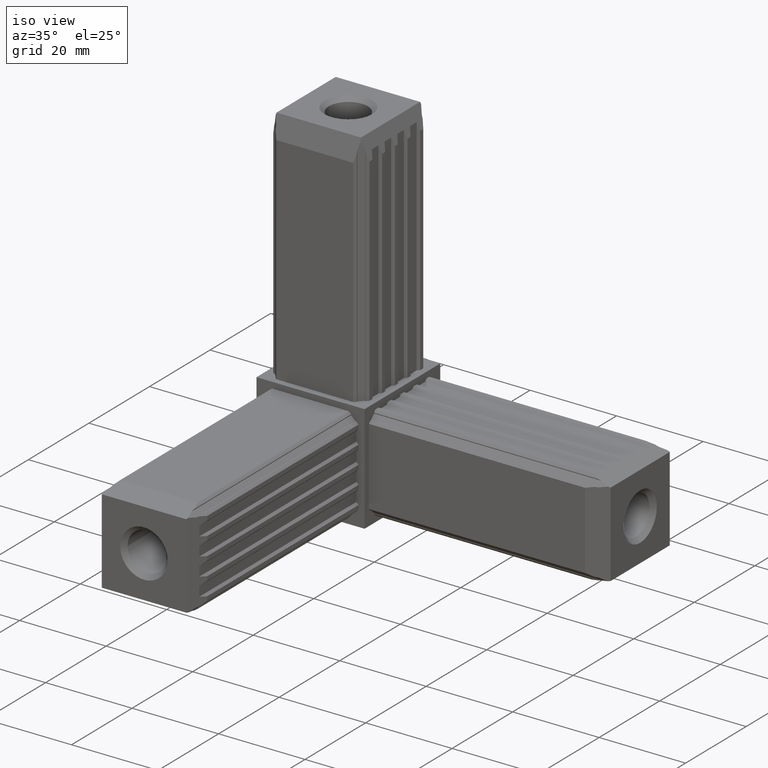
[diagram: clean part render]
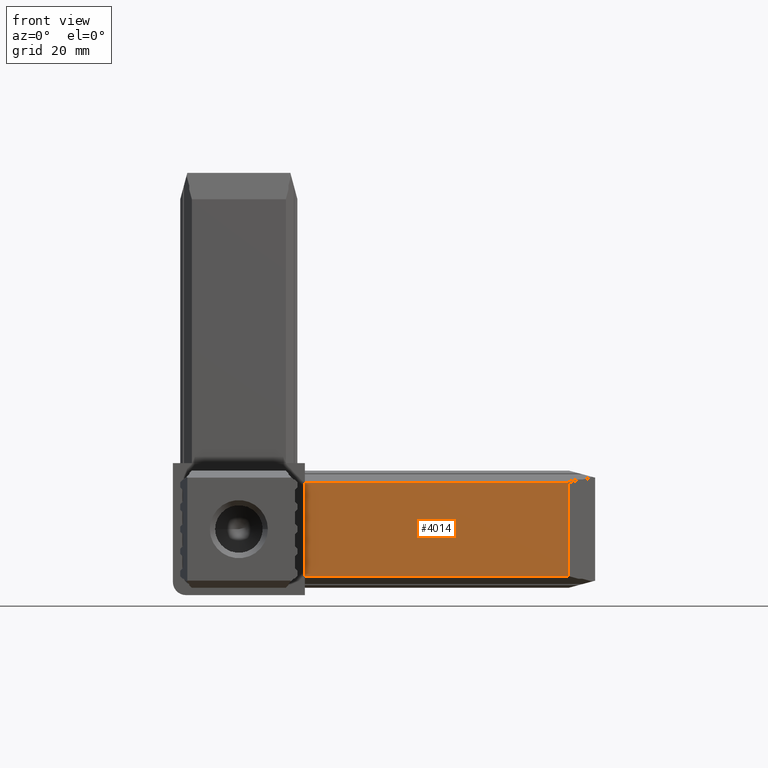
[diagram: tour spotlight — one face highlighted and labeled with its STEP entity id]
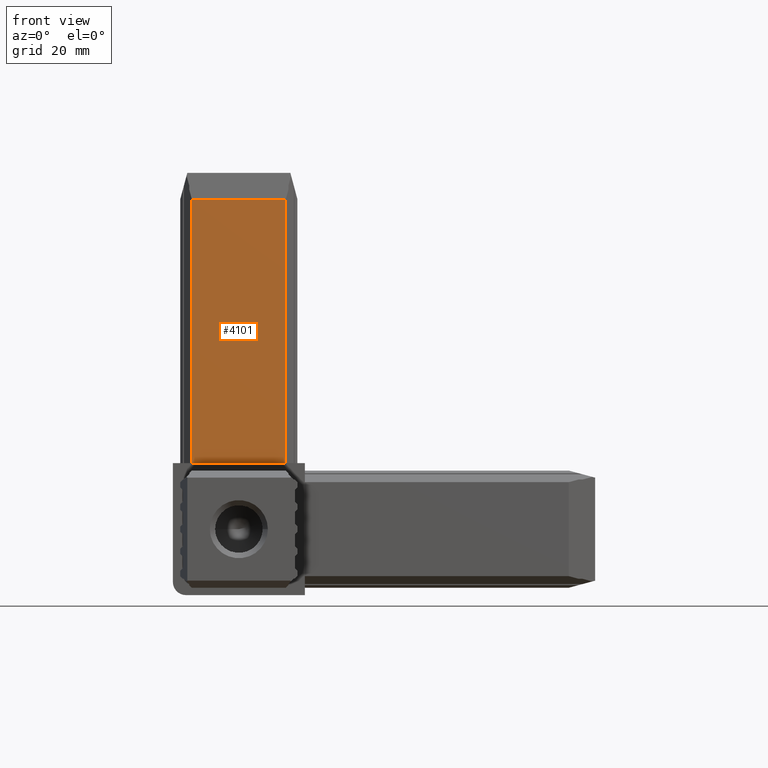
[diagram: tour spotlight — one face highlighted and labeled with its STEP entity id]
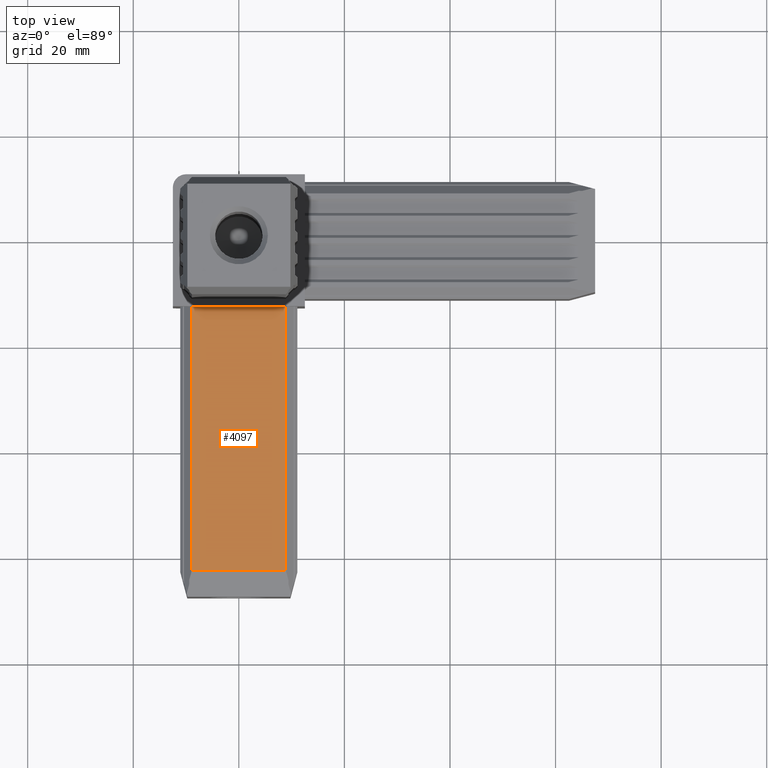
[diagram: tour spotlight — one face highlighted and labeled with its STEP entity id]
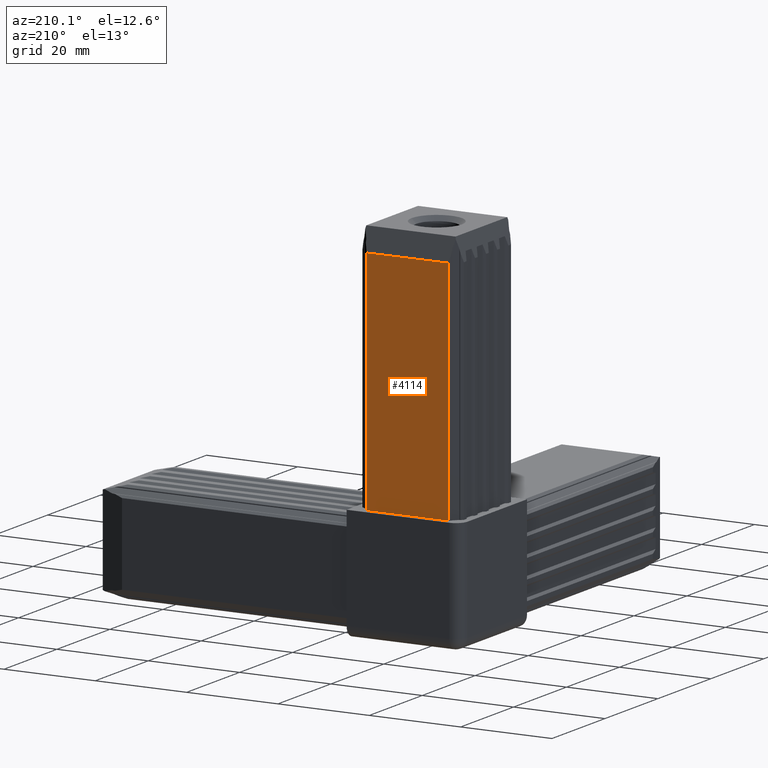
[diagram: tour spotlight — one face highlighted and labeled with its STEP entity id]
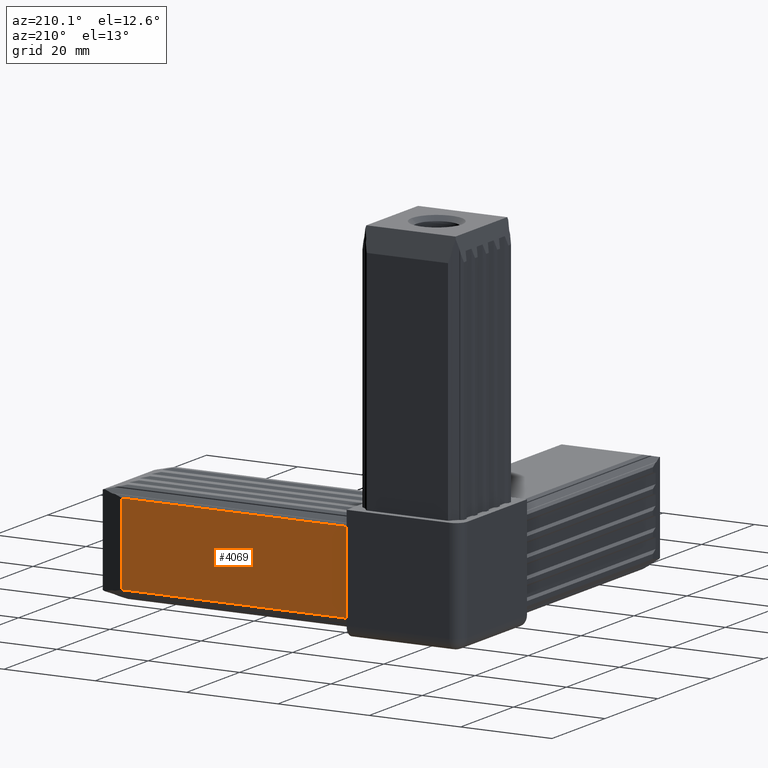
[diagram: tour spotlight — one face highlighted and labeled with its STEP entity id]
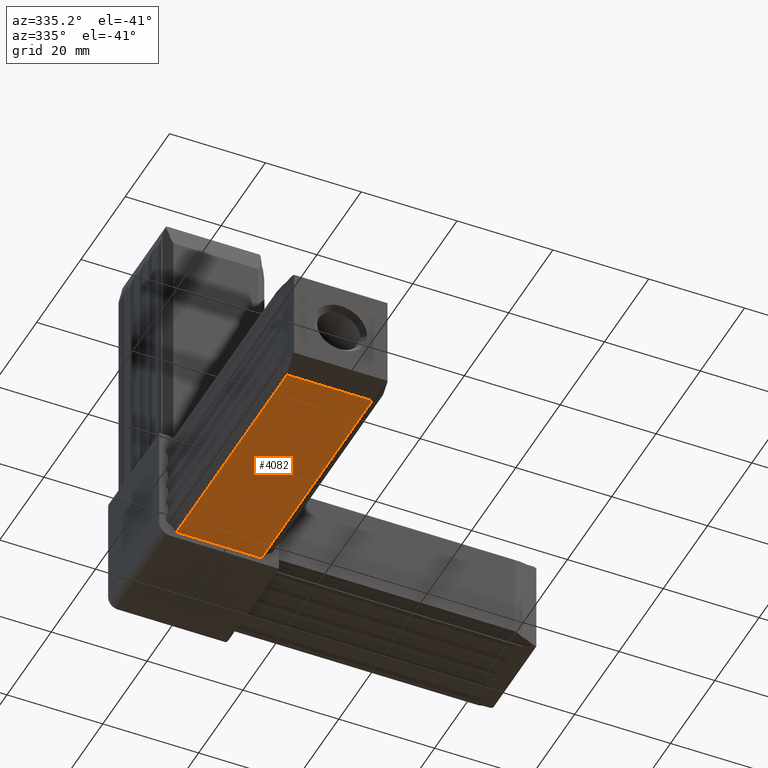
[diagram: tour spotlight — one face highlighted and labeled with its STEP entity id]
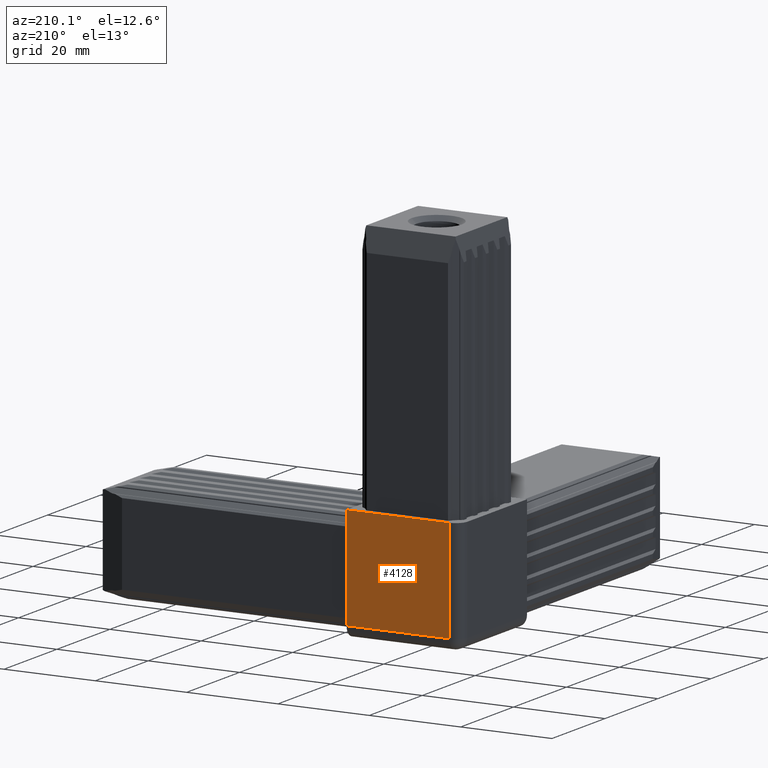
[diagram: tour spotlight — one face highlighted and labeled with its STEP entity id]
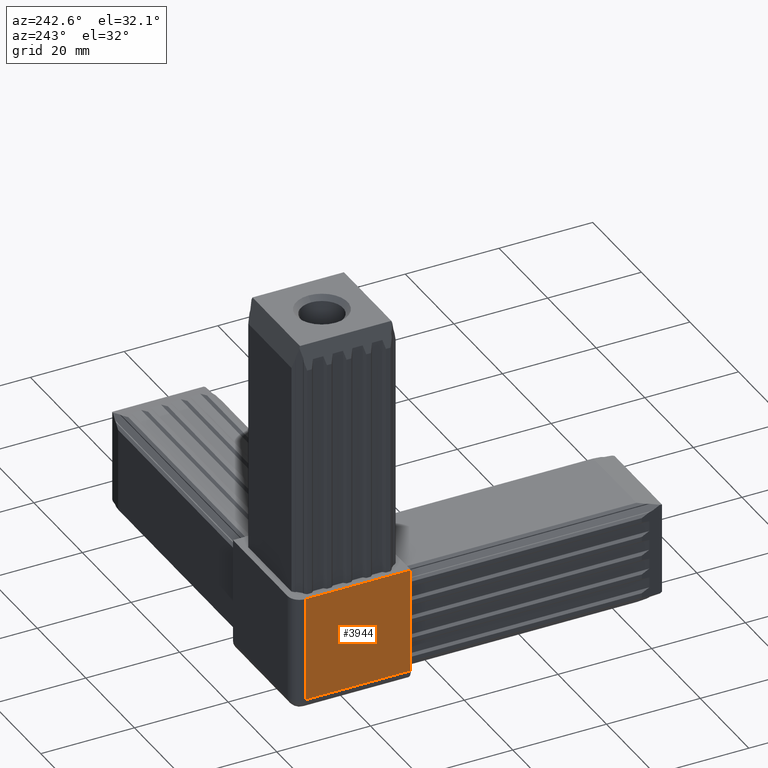
[diagram: tour spotlight — one face highlighted and labeled with its STEP entity id]
A machine part: a face-by-face anatomy tour. The part has 202 B-rep faces; the first image is the clean iso view, then the 8 largest visible faces are spotlighted one at a time (largest first), each with its STEP entity span.

Face 1 — front view, entity #4014. In plain terms, the highlighted planar face has unit normal (0, -1, 0).
Definition (entity closure, byte-faithful):
#95=PLANE('',#4257);
#303=FACE_OUTER_BOUND('',#509,.T.);
#509=EDGE_LOOP('',(#3331,#3332,#3333,#3334));
#989=LINE('',#6158,#1553);
#993=LINE('',#6166,#1557);
#994=LINE('',#6168,#1558);
#995=LINE('',#6169,#1559);
#1553=VECTOR('',#4951,10.);
#1557=VECTOR('',#4957,10.);
#1558=VECTOR('',#4958,10.);
#1559=VECTOR('',#4959,10.);
#2077=VERTEX_POINT('',#6155);
#2078=VERTEX_POINT('',#6157);
#2081=VERTEX_POINT('',#6165);
#2082=VERTEX_POINT('',#6167);
#2550=EDGE_CURVE('',#2077,#2078,#989,.T.);
#2554=EDGE_CURVE('',#2081,#2077,#993,.T.);
#2555=EDGE_CURVE('',#2082,#2081,#994,.T.);
#2556=EDGE_CURVE('',#2082,#2078,#995,.T.);
#3331=ORIENTED_EDGE('',*,*,#2550,.F.);
#3332=ORIENTED_EDGE('',*,*,#2554,.F.);
#3333=ORIENTED_EDGE('',*,*,#2555,.F.);
#3334=ORIENTED_EDGE('',*,*,#2556,.T.);
#4014=ADVANCED_FACE('',(#303),#95,.T.);
#4257=AXIS2_PLACEMENT_3D('',#6164,#4955,#4956);
#4951=DIRECTION('',(0.,-9.97953280561973E-16,-1.));
#4955=DIRECTION('center_axis',(0.,-1.,9.97953280561973E-16));
#4956=DIRECTION('ref_axis',(0.,-9.97953280561973E-16,-1.));
#4957=DIRECTION('',(1.,0.,0.));
#4958=DIRECTION('',(0.,9.97953280561973E-16,1.));
#4959=DIRECTION('',(1.,0.,0.));
#6155=CARTESIAN_POINT('',(62.5,-11.1000000000002,8.89999999999969));
#6157=CARTESIAN_POINT('',(62.5,-11.1000000000002,-8.89999999999969));
#6158=CARTESIAN_POINT('',(62.5,-11.1000000000002,4.44999999999976));
#6164=CARTESIAN_POINT('Origin',(12.5,-11.1000000000002,8.89999999999969));
#6165=CARTESIAN_POINT('',(12.5,-11.1000000000002,8.89999999999969));
#6166=CARTESIAN_POINT('',(12.5,-11.1000000000002,8.89999999999969));
#6167=CARTESIAN_POINT('',(12.5,-11.1000000000002,-8.89999999999969));
#6168=CARTESIAN_POINT('',(12.5,-11.1000000000002,4.44999999999985));
#6169=CARTESIAN_POINT('',(12.5,-11.1000000000002,-8.89999999999969));

Face 2 — front view, entity #4101. In plain terms, the highlighted planar face has unit normal (-0, -1, 0).
Definition (entity closure, byte-faithful):
#182=PLANE('',#4344);
#390=FACE_OUTER_BOUND('',#596,.T.);
#596=EDGE_LOOP('',(#3692,#3693,#3694,#3695));
#1028=LINE('',#6236,#1592);
#1034=LINE('',#6247,#1598);
#1138=LINE('',#6459,#1702);
#1140=LINE('',#6462,#1704);
#1592=VECTOR('',#5024,10.);
#1598=VECTOR('',#5032,10.);
#1702=VECTOR('',#5274,10.);
#1704=VECTOR('',#5278,10.);
#2099=VERTEX_POINT('',#6233);
#2100=VERTEX_POINT('',#6235);
#2104=VERTEX_POINT('',#6245);
#2143=VERTEX_POINT('',#6458);
#2589=EDGE_CURVE('',#2099,#2100,#1028,.T.);
#2595=EDGE_CURVE('',#2104,#2099,#1034,.T.);
#2699=EDGE_CURVE('',#2143,#2100,#1138,.T.);
#2701=EDGE_CURVE('',#2143,#2104,#1140,.T.);
#3692=ORIENTED_EDGE('',*,*,#2589,.F.);
#3693=ORIENTED_EDGE('',*,*,#2595,.F.);
#3694=ORIENTED_EDGE('',*,*,#2701,.F.);
#3695=ORIENTED_EDGE('',*,*,#2699,.T.);
#4101=ADVANCED_FACE('',(#390),#182,.T.);
#4344=AXIS2_PLACEMENT_3D('',#6461,#5276,#5277);
#5024=DIRECTION('',(1.,-1.99590656112393E-15,0.));
#5032=DIRECTION('',(0.,0.,1.));
#5274=DIRECTION('',(0.,0.,1.));
#5276=DIRECTION('center_axis',(-1.99590656112393E-15,-1.,0.));
#5277=DIRECTION('ref_axis',(1.,-1.99590656112393E-15,0.));
#5278=DIRECTION('',(-1.,1.99590656112393E-15,0.));
#6233=CARTESIAN_POINT('',(-8.89999999999976,-11.1,62.5));
#6235=CARTESIAN_POINT('',(8.89999999999976,-11.1,62.5));
#6236=CARTESIAN_POINT('',(-4.44999999999984,-11.1,62.5));
#6245=CARTESIAN_POINT('',(-8.89999999999976,-11.1,12.5));
#6247=CARTESIAN_POINT('',(-8.89999999999976,-11.1,12.5));
#6458=CARTESIAN_POINT('',(8.89999999999976,-11.1,12.5));
#6459=CARTESIAN_POINT('',(8.89999999999976,-11.1,12.5));
#6461=CARTESIAN_POINT('Origin',(-8.89999999999976,-11.1,12.5));
#6462=CARTESIAN_POINT('',(-4.44999999999989,-11.1,12.5));

Face 3 — top view, entity #4097. In plain terms, the highlighted planar face has unit normal (0, 0, 1).
Definition (entity closure, byte-faithful):
#178=PLANE('',#4340);
#386=FACE_OUTER_BOUND('',#592,.T.);
#592=EDGE_LOOP('',(#3676,#3677,#3678,#3679));
#699=LINE('',#5581,#1263);
#757=LINE('',#5696,#1321);
#1134=LINE('',#6449,#1698);
#1135=LINE('',#6451,#1699);
#1263=VECTOR('',#4525,10.);
#1321=VECTOR('',#4609,10.);
#1698=VECTOR('',#5262,10.);
#1699=VECTOR('',#5265,10.);
#1858=VERTEX_POINT('',#5578);
#1859=VERTEX_POINT('',#5580);
#1902=VERTEX_POINT('',#5693);
#1903=VERTEX_POINT('',#5695);
#2260=EDGE_CURVE('',#1858,#1859,#699,.T.);
#2318=EDGE_CURVE('',#1902,#1903,#757,.T.);
#2695=EDGE_CURVE('',#1858,#1903,#1134,.T.);
#2696=EDGE_CURVE('',#1859,#1902,#1135,.T.);
#3676=ORIENTED_EDGE('',*,*,#2318,.F.);
#3677=ORIENTED_EDGE('',*,*,#2696,.F.);
#3678=ORIENTED_EDGE('',*,*,#2260,.F.);
#3679=ORIENTED_EDGE('',*,*,#2695,.T.);
#4097=ADVANCED_FACE('',(#386),#178,.T.);
#4340=AXIS2_PLACEMENT_3D('',#6450,#5263,#5264);
#4525=DIRECTION('',(1.,0.,-7.48464960421449E-16));
#4609=DIRECTION('',(-1.,0.,7.48464960421449E-16));
#5262=DIRECTION('',(0.,-1.,0.));
#5263=DIRECTION('center_axis',(7.48464960421449E-16,0.,1.));
#5264=DIRECTION('ref_axis',(-1.,0.,7.48464960421449E-16));
#5265=DIRECTION('',(0.,-1.,0.));
#5578=CARTESIAN_POINT('',(-8.9,-12.5,11.0999999999998));
#5580=CARTESIAN_POINT('',(8.90000000000011,-12.5,11.0999999999998));
#5581=CARTESIAN_POINT('',(-1.79999999999994,-12.5,11.0999999999998));
#5693=CARTESIAN_POINT('',(8.90000000000011,-62.5,11.0999999999998));
#5695=CARTESIAN_POINT('',(-8.9,-62.5,11.0999999999998));
#5696=CARTESIAN_POINT('',(4.45000000000009,-62.5,11.0999999999998));
#6449=CARTESIAN_POINT('',(-8.9,-12.5,11.0999999999998));
#6450=CARTESIAN_POINT('Origin',(8.90000000000011,-12.5,11.0999999999998));
#6451=CARTESIAN_POINT('',(8.90000000000011,-12.5,11.0999999999998));

Face 4 — auxiliary view, entity #4114. In plain terms, the highlighted planar face has unit normal (0, 1, 0).
Definition (entity closure, byte-faithful):
#195=PLANE('',#4357);
#403=FACE_OUTER_BOUND('',#609,.T.);
#609=EDGE_LOOP('',(#3744,#3745,#3746,#3747));
#823=LINE('',#5828,#1387);
#828=LINE('',#5837,#1392);
#1162=LINE('',#6507,#1726);
#1164=LINE('',#6510,#1728);
#1387=VECTOR('',#4705,10.);
#1392=VECTOR('',#4712,10.);
#1726=VECTOR('',#5324,10.);
#1728=VECTOR('',#5328,10.);
#1953=VERTEX_POINT('',#5825);
#1954=VERTEX_POINT('',#5827);
#1957=VERTEX_POINT('',#5835);
#2154=VERTEX_POINT('',#6506);
#2384=EDGE_CURVE('',#1953,#1954,#823,.T.);
#2389=EDGE_CURVE('',#1957,#1953,#828,.T.);
#2723=EDGE_CURVE('',#2154,#1954,#1162,.T.);
#2725=EDGE_CURVE('',#2154,#1957,#1164,.T.);
#3744=ORIENTED_EDGE('',*,*,#2384,.F.);
#3745=ORIENTED_EDGE('',*,*,#2389,.F.);
#3746=ORIENTED_EDGE('',*,*,#2725,.F.);
#3747=ORIENTED_EDGE('',*,*,#2723,.T.);
#4114=ADVANCED_FACE('',(#403),#195,.T.);
#4357=AXIS2_PLACEMENT_3D('',#6509,#5326,#5327);
#4705=DIRECTION('',(-1.,1.99590656112384E-15,0.));
#4712=DIRECTION('',(0.,0.,1.));
#5324=DIRECTION('',(0.,0.,1.));
#5326=DIRECTION('center_axis',(1.99590656112384E-15,1.,0.));
#5327=DIRECTION('ref_axis',(-1.,1.99590656112384E-15,0.));
#5328=DIRECTION('',(1.,-1.99590656112384E-15,0.));
#5825=CARTESIAN_POINT('',(8.90000000000049,11.0999999999999,62.5));
#5827=CARTESIAN_POINT('',(-8.89999999999986,11.1,62.5));
#5828=CARTESIAN_POINT('',(4.45000000000031,11.0999999999999,62.5));
#5835=CARTESIAN_POINT('',(8.90000000000049,11.0999999999999,12.5));
#5837=CARTESIAN_POINT('',(8.90000000000049,11.0999999999999,12.5));
#6506=CARTESIAN_POINT('',(-8.89999999999986,11.1,12.5));
#6507=CARTESIAN_POINT('',(-8.89999999999986,11.1,12.5));
#6509=CARTESIAN_POINT('Origin',(8.90000000000049,11.0999999999999,12.5));
#6510=CARTESIAN_POINT('',(4.45000000000026,11.0999999999999,12.5));

Face 5 — auxiliary view, entity #4069. In plain terms, the highlighted planar face has unit normal (0, 1, -0).
Definition (entity closure, byte-faithful):
#150=PLANE('',#4312);
#358=FACE_OUTER_BOUND('',#564,.T.);
#564=EDGE_LOOP('',(#3563,#3564,#3565,#3566));
#862=LINE('',#5906,#1426);
#1106=LINE('',#6392,#1670);
#1108=LINE('',#6396,#1672);
#1109=LINE('',#6397,#1673);
#1426=VECTOR('',#4754,10.);
#1670=VECTOR('',#5178,10.);
#1672=VECTOR('',#5182,10.);
#1673=VECTOR('',#5183,10.);
#1987=VERTEX_POINT('',#5903);
#1988=VERTEX_POINT('',#5905);
#2140=VERTEX_POINT('',#6391);
#2141=VERTEX_POINT('',#6395);
#2423=EDGE_CURVE('',#1987,#1988,#862,.T.);
#2667=EDGE_CURVE('',#2140,#1988,#1106,.T.);
#2669=EDGE_CURVE('',#2141,#1987,#1108,.T.);
#2670=EDGE_CURVE('',#2140,#2141,#1109,.T.);
#3563=ORIENTED_EDGE('',*,*,#2423,.F.);
#3564=ORIENTED_EDGE('',*,*,#2669,.F.);
#3565=ORIENTED_EDGE('',*,*,#2670,.F.);
#3566=ORIENTED_EDGE('',*,*,#2667,.T.);
#4069=ADVANCED_FACE('',(#358),#150,.T.);
#4312=AXIS2_PLACEMENT_3D('',#6394,#5180,#5181);
#4754=DIRECTION('',(0.,9.97953280561913E-16,1.));
#5178=DIRECTION('',(1.,0.,0.));
#5180=DIRECTION('center_axis',(0.,1.,-9.97953280561913E-16));
#5181=DIRECTION('ref_axis',(0.,9.97953280561913E-16,1.));
#5182=DIRECTION('',(1.,0.,0.));
#5183=DIRECTION('',(0.,-9.97953280561913E-16,-1.));
#5903=CARTESIAN_POINT('',(62.5,11.0999999999998,-8.90000000000058));
#5905=CARTESIAN_POINT('',(62.5,11.0999999999999,8.89999999999987));
#5906=CARTESIAN_POINT('',(62.5,11.0999999999998,-4.45000000000039));
#6391=CARTESIAN_POINT('',(12.5,11.0999999999999,8.89999999999987));
#6392=CARTESIAN_POINT('',(12.5,11.0999999999999,8.89999999999987));
#6394=CARTESIAN_POINT('Origin',(12.5,11.0999999999998,-8.90000000000058));
#6395=CARTESIAN_POINT('',(12.5,11.0999999999998,-8.90000000000058));
#6396=CARTESIAN_POINT('',(12.5,11.0999999999998,-8.90000000000058));
#6397=CARTESIAN_POINT('',(12.5,11.0999999999998,-4.4500000000003));

Face 6 — auxiliary view, entity #4082. In plain terms, the highlighted planar face has unit normal (-0, 0, -1).
Definition (entity closure, byte-faithful):
#163=PLANE('',#4325);
#371=FACE_OUTER_BOUND('',#577,.T.);
#577=EDGE_LOOP('',(#3616,#3617,#3618,#3619));
#671=LINE('',#5525,#1235);
#763=LINE('',#5708,#1327);
#946=LINE('',#6072,#1510);
#1121=LINE('',#6421,#1685);
#1235=VECTOR('',#4497,10.);
#1327=VECTOR('',#4617,10.);
#1510=VECTOR('',#4874,10.);
#1685=VECTOR('',#5219,10.);
#1830=VERTEX_POINT('',#5522);
#1831=VERTEX_POINT('',#5524);
#1907=VERTEX_POINT('',#5705);
#1908=VERTEX_POINT('',#5707);
#2232=EDGE_CURVE('',#1830,#1831,#671,.T.);
#2324=EDGE_CURVE('',#1907,#1908,#763,.T.);
#2507=EDGE_CURVE('',#1831,#1907,#946,.T.);
#2682=EDGE_CURVE('',#1830,#1908,#1121,.T.);
#3616=ORIENTED_EDGE('',*,*,#2324,.F.);
#3617=ORIENTED_EDGE('',*,*,#2507,.F.);
#3618=ORIENTED_EDGE('',*,*,#2232,.F.);
#3619=ORIENTED_EDGE('',*,*,#2682,.T.);
#4082=ADVANCED_FACE('',(#371),#163,.T.);
#4325=AXIS2_PLACEMENT_3D('',#6422,#5220,#5221);
#4497=DIRECTION('',(-1.,0.,4.98976640280978E-16));
#4617=DIRECTION('',(1.,0.,-4.98976640280978E-16));
#4874=DIRECTION('',(0.,-1.,0.));
#5219=DIRECTION('',(0.,-1.,0.));
#5220=DIRECTION('center_axis',(-4.98976640280978E-16,0.,-1.));
#5221=DIRECTION('ref_axis',(1.,0.,-4.98976640280978E-16));
#5522=CARTESIAN_POINT('',(8.89999999999985,-12.5,-11.1000000000002));
#5524=CARTESIAN_POINT('',(-8.89999999999985,-12.5,-11.1000000000002));
#5525=CARTESIAN_POINT('',(-10.6999999999999,-12.5,-11.1000000000002));
#5705=CARTESIAN_POINT('',(-8.89999999999985,-62.5,-11.1000000000002));
#5707=CARTESIAN_POINT('',(8.89999999999985,-62.5,-11.1000000000002));
#5708=CARTESIAN_POINT('',(-4.44999999999989,-62.5,-11.1000000000002));
#6072=CARTESIAN_POINT('',(-8.89999999999985,-12.5,-11.1000000000002));
#6421=CARTESIAN_POINT('',(8.89999999999985,-12.5,-11.1000000000002));
#6422=CARTESIAN_POINT('Origin',(-8.89999999999985,-12.5,-11.1000000000002));

Face 7 — auxiliary view, entity #4128. In plain terms, the highlighted planar face has unit normal (0, 1, 0).
Definition (entity closure, byte-faithful):
#209=PLANE('',#4371);
#417=FACE_OUTER_BOUND('',#624,.T.);
#624=EDGE_LOOP('',(#3857,#3858,#3859,#3860));
#648=LINE('',#5475,#1212);
#651=LINE('',#5482,#1215);
#1188=LINE('',#6559,#1752);
#1190=LINE('',#6562,#1754);
#1212=VECTOR('',#4462,10.);
#1215=VECTOR('',#4469,10.);
#1752=VECTOR('',#5378,10.);
#1754=VECTOR('',#5382,10.);
#1808=VERTEX_POINT('',#5468);
#1810=VERTEX_POINT('',#5473);
#1811=VERTEX_POINT('',#5478);
#2166=VERTEX_POINT('',#6558);
#2207=EDGE_CURVE('',#1810,#1808,#648,.T.);
#2211=EDGE_CURVE('',#1808,#1811,#651,.T.);
#2749=EDGE_CURVE('',#2166,#1811,#1188,.T.);
#2751=EDGE_CURVE('',#2166,#1810,#1190,.T.);
#3857=ORIENTED_EDGE('',*,*,#2207,.F.);
#3858=ORIENTED_EDGE('',*,*,#2751,.F.);
#3859=ORIENTED_EDGE('',*,*,#2749,.T.);
#3860=ORIENTED_EDGE('',*,*,#2211,.F.);
#4128=ADVANCED_FACE('',(#417),#209,.T.);
#4371=AXIS2_PLACEMENT_3D('',#6561,#5380,#5381);
#4462=DIRECTION('',(0.,0.,-1.));
#4469=DIRECTION('',(1.,0.,0.));
#5378=DIRECTION('',(0.,0.,-1.));
#5380=DIRECTION('center_axis',(0.,1.,0.));
#5381=DIRECTION('ref_axis',(-1.,0.,0.));
#5382=DIRECTION('',(-1.,0.,0.));
#5468=CARTESIAN_POINT('',(-10.,12.5,-10.));
#5473=CARTESIAN_POINT('',(-10.,12.5,12.5));
#5475=CARTESIAN_POINT('',(-10.,12.5,0.));
#5478=CARTESIAN_POINT('',(12.5,12.5,-10.));
#5482=CARTESIAN_POINT('',(6.25,12.5,-10.));
#6558=CARTESIAN_POINT('',(12.5,12.5,12.5));
#6559=CARTESIAN_POINT('',(12.5,12.5,0.));
#6561=CARTESIAN_POINT('Origin',(12.5,12.5,0.));
#6562=CARTESIAN_POINT('',(-12.5,12.5,12.5));

Face 8 — auxiliary view, entity #3944. In plain terms, the highlighted planar face has unit normal (-1, 0, 0).
Definition (entity closure, byte-faithful):
#25=PLANE('',#4187);
#233=FACE_OUTER_BOUND('',#438,.T.);
#438=EDGE_LOOP('',(#2827,#2828,#2829,#2830));
#649=LINE('',#5476,#1213);
#652=LINE('',#5487,#1216);
#654=LINE('',#5491,#1218);
#655=LINE('',#5492,#1219);
#1213=VECTOR('',#4463,10.);
#1216=VECTOR('',#4474,10.);
#1218=VECTOR('',#4478,10.);
#1219=VECTOR('',#4479,10.);
#1806=VERTEX_POINT('',#5465);
#1809=VERTEX_POINT('',#5472);
#1814=VERTEX_POINT('',#5485);
#1815=VERTEX_POINT('',#5490);
#2208=EDGE_CURVE('',#1806,#1809,#649,.T.);
#2213=EDGE_CURVE('',#1814,#1806,#652,.T.);
#2215=EDGE_CURVE('',#1815,#1814,#654,.T.);
#2216=EDGE_CURVE('',#1809,#1815,#655,.T.);
#2827=ORIENTED_EDGE('',*,*,#2208,.F.);
#2828=ORIENTED_EDGE('',*,*,#2213,.F.);
#2829=ORIENTED_EDGE('',*,*,#2215,.F.);
#2830=ORIENTED_EDGE('',*,*,#2216,.F.);
#3944=ADVANCED_FACE('',(#233),#25,.T.);
#4187=AXIS2_PLACEMENT_3D('',#5489,#4476,#4477);
#4463=DIRECTION('',(0.,0.,1.));
#4474=DIRECTION('',(0.,1.,0.));
#4476=DIRECTION('center_axis',(-1.,0.,0.));
#4477=DIRECTION('ref_axis',(0.,-1.,0.));
#4478=DIRECTION('',(0.,0.,-1.));
#4479=DIRECTION('',(0.,-1.,0.));
#5465=CARTESIAN_POINT('',(-12.5,10.,-10.));
#5472=CARTESIAN_POINT('',(-12.5,10.,12.5));
#5476=CARTESIAN_POINT('',(-12.5,10.,0.));
#5485=CARTESIAN_POINT('',(-12.5,-12.5,-10.));
#5487=CARTESIAN_POINT('',(-12.5,6.25,-10.));
#5489=CARTESIAN_POINT('Origin',(-12.5,12.5,0.));
#5490=CARTESIAN_POINT('',(-12.5,-12.5,12.5));
#5491=CARTESIAN_POINT('',(-12.5,-12.5,0.));
#5492=CARTESIAN_POINT('',(-12.5,-12.5,12.5));